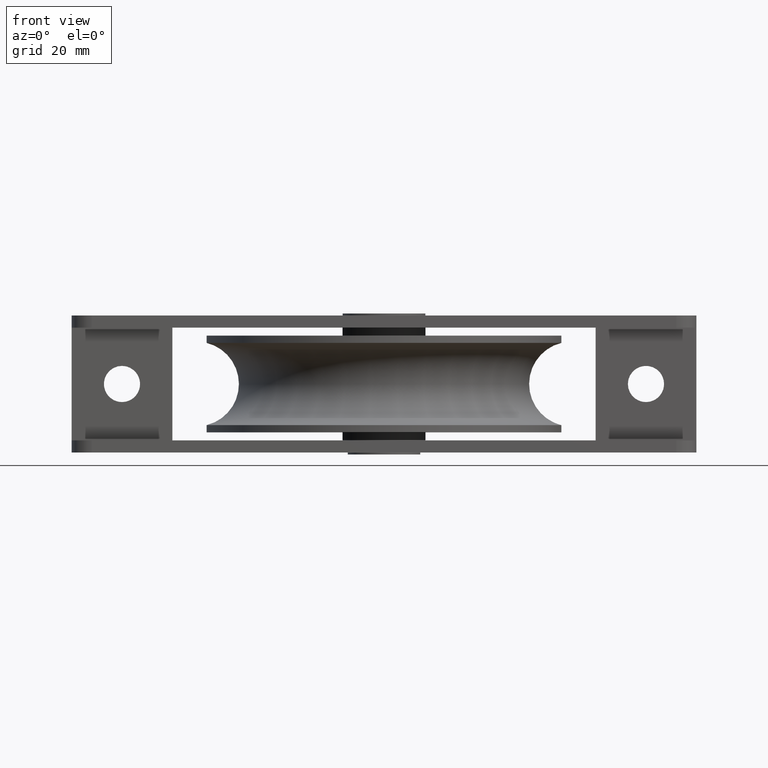
[diagram: clean part render]
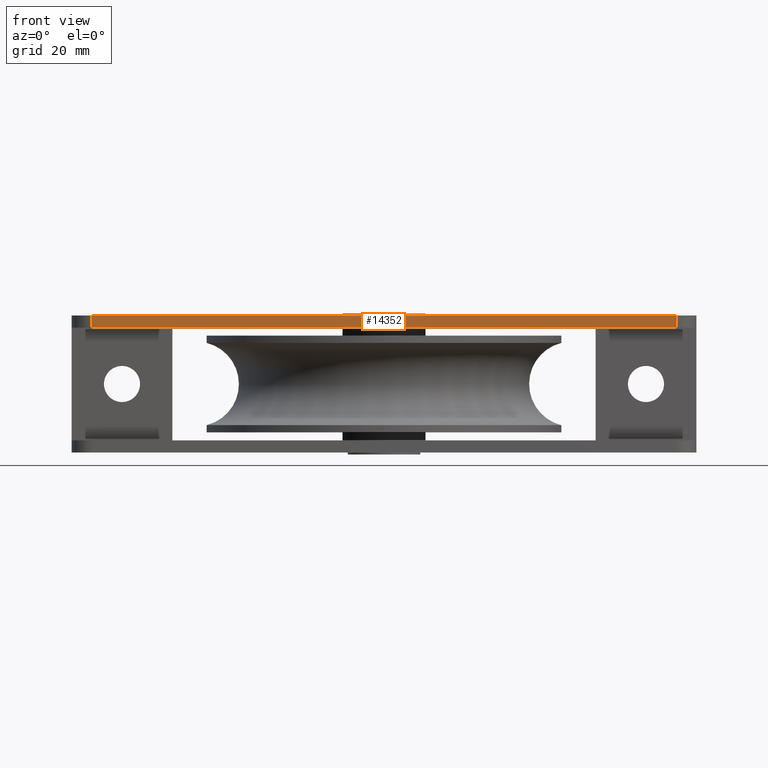
[diagram: same view with one face highlighted and labeled with its STEP entity id]
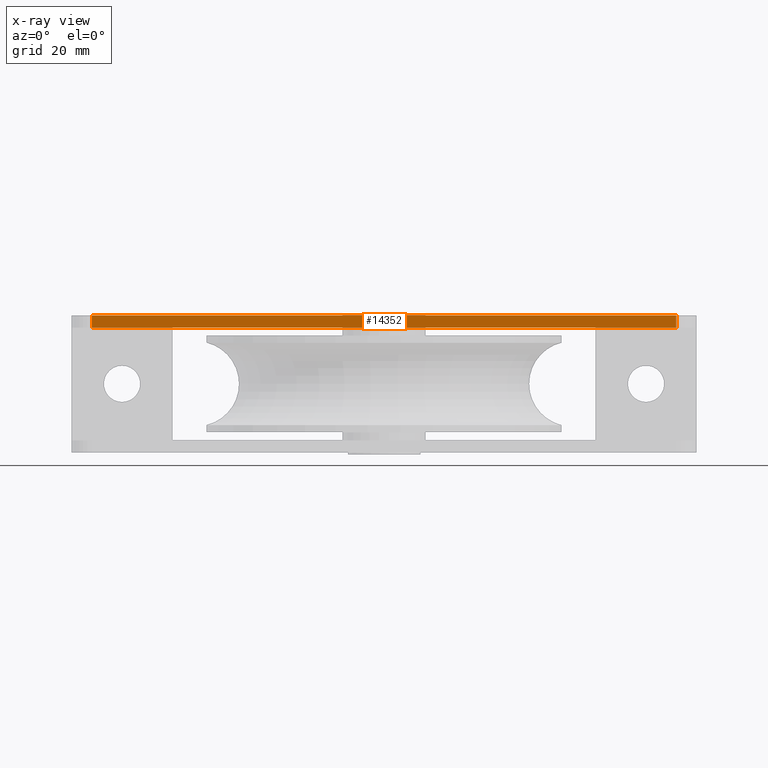
[diagram: x-ray of the same camera — body ghosted, the highlighted face saturated]
A machine part, front view. The second image highlights one B-rep face of the part: STEP entity #14352.
The next image is the same camera in x-ray: the body ghosted, the highlighted face saturated — about 0% of this face is hidden behind the body in this view.
In plain terms, the highlighted planar face has unit normal (0, 1, 0).
Its self-contained STEP definition (entity closure, byte-faithful):
#162 = CARTESIAN_POINT ( 'NONE',  ( -72.50000000000000000, -35.00000000000000000, 14.00000000000000000 ) ) ;
#690 = VECTOR ( 'NONE', #10988, 1000.000000000000000 ) ;
#885 = EDGE_CURVE ( 'NONE', #4118, #5093, #8071, .T. ) ;
#1007 = DIRECTION ( 'NONE',  ( 0.0000000000000000000, 0.0000000000000000000, -1.000000000000000000 ) ) ;
#1048 = CARTESIAN_POINT ( 'NONE',  ( 72.50000000000000000, -35.00000000000000000, 17.00000000000000000 ) ) ;
#1940 = CARTESIAN_POINT ( 'NONE',  ( -72.50000000000000000, -35.00000000000000000, 17.00000000000000000 ) ) ;
#2079 = ORIENTED_EDGE ( 'NONE', *, *, #885, .T. ) ;
#2336 = EDGE_CURVE ( 'NONE', #4118, #5359, #3324, .T. ) ;
#2346 = VECTOR ( 'NONE', #1007, 1000.000000000000000 ) ;
#3324 = LINE ( 'NONE', #5363, #690 ) ;
#3460 = FACE_OUTER_BOUND ( 'NONE', #12472, .T. ) ;
#3498 = CARTESIAN_POINT ( 'NONE',  ( 72.50000000000000000, -35.00000000000000000, 17.00000000000000000 ) ) ;
#4068 = ORIENTED_EDGE ( 'NONE', *, *, #12547, .T. ) ;
#4118 = VERTEX_POINT ( 'NONE', #1940 ) ;
#5093 = VERTEX_POINT ( 'NONE', #162 ) ;
#5231 = VERTEX_POINT ( 'NONE', #9554 ) ;
#5357 = DIRECTION ( 'NONE',  ( 0.0000000000000000000, 1.000000000000000000, 0.0000000000000000000 ) ) ;
#5359 = VERTEX_POINT ( 'NONE', #1048 ) ;
#5363 = CARTESIAN_POINT ( 'NONE',  ( 0.0000000000000000000, -35.00000000000000000, 17.00000000000000000 ) ) ;
#5684 = AXIS2_PLACEMENT_3D ( 'NONE', #13339, #5357, #7711 ) ;
#7141 = CARTESIAN_POINT ( 'NONE',  ( 0.0000000000000000000, -35.00000000000000000, 14.00000000000000000 ) ) ;
#7350 = VECTOR ( 'NONE', #13884, 1000.000000000000000 ) ;
#7711 = DIRECTION ( 'NONE',  ( 0.0000000000000000000, -0.0000000000000000000, 1.000000000000000000 ) ) ;
#8071 = LINE ( 'NONE', #13976, #2346 ) ;
#9554 = CARTESIAN_POINT ( 'NONE',  ( 72.50000000000000000, -35.00000000000000000, 14.00000000000000000 ) ) ;
#9916 = VECTOR ( 'NONE', #12408, 1000.000000000000000 ) ;
#10300 = LINE ( 'NONE', #7141, #7350 ) ;
#10486 = ORIENTED_EDGE ( 'NONE', *, *, #2336, .F. ) ;
#10754 = ORIENTED_EDGE ( 'NONE', *, *, #13218, .T. ) ;
#10988 = DIRECTION ( 'NONE',  ( 1.000000000000000000, 0.0000000000000000000, 0.0000000000000000000 ) ) ;
#12408 = DIRECTION ( 'NONE',  ( -0.0000000000000000000, -0.0000000000000000000, 1.000000000000000000 ) ) ;
#12472 = EDGE_LOOP ( 'NONE', ( #10486, #2079, #4068, #10754 ) ) ;
#12547 = EDGE_CURVE ( 'NONE', #5093, #5231, #10300, .T. ) ;
#12903 = LINE ( 'NONE', #3498, #9916 ) ;
#13218 = EDGE_CURVE ( 'NONE', #5231, #5359, #12903, .T. ) ;
#13251 = PLANE ( 'NONE',  #5684 ) ;
#13339 = CARTESIAN_POINT ( 'NONE',  ( 0.0000000000000000000, -35.00000000000000000, 17.00000000000000000 ) ) ;
#13884 = DIRECTION ( 'NONE',  ( 1.000000000000000000, 0.0000000000000000000, 0.0000000000000000000 ) ) ;
#13976 = CARTESIAN_POINT ( 'NONE',  ( -72.50000000000000000, -35.00000000000000000, 17.00000000000000000 ) ) ;
#14352 = ADVANCED_FACE ( 'NONE', ( #3460 ), #13251, .F. ) ;